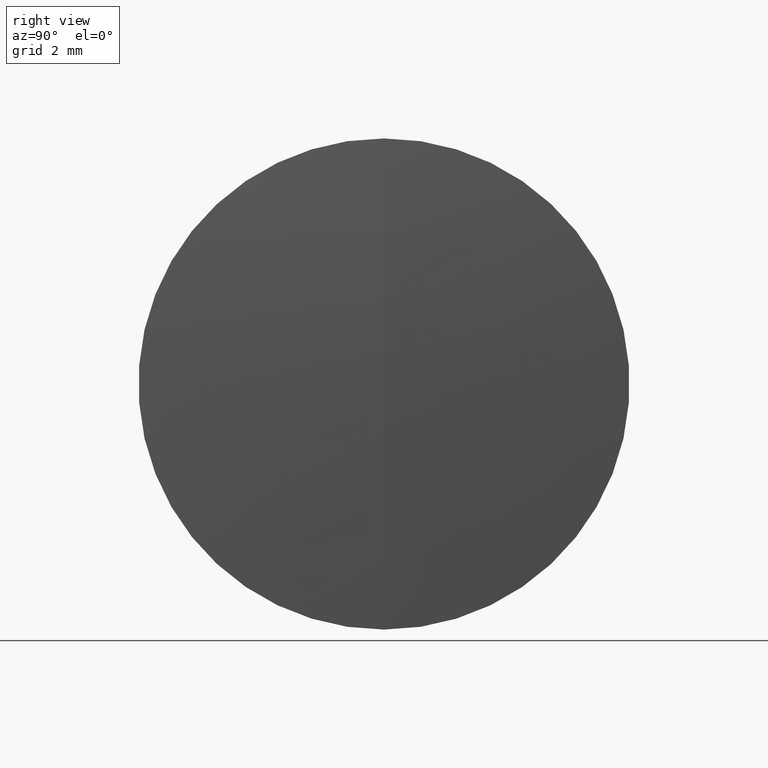
[diagram: clean part render]
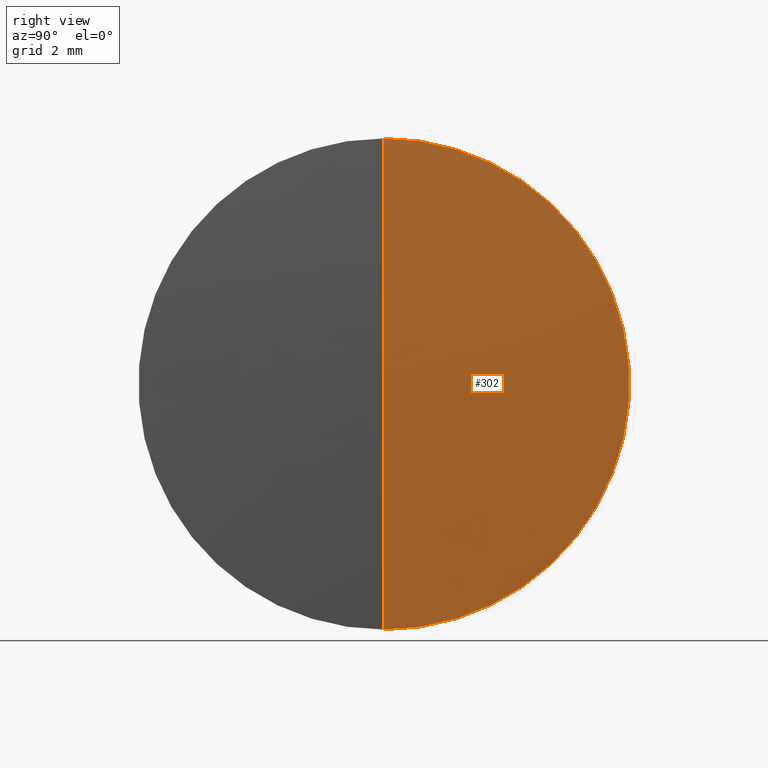
[diagram: same view with one face highlighted and labeled with its STEP entity id]
A machine part, right view. The second image highlights one B-rep face of the part: STEP entity #302.
In plain terms, the highlighted spherical surface has radius 77.4 mm.
Its self-contained STEP definition (entity closure, byte-faithful):
#28 = EDGE_CURVE ( 'NONE', #87, #33, #325, .T. ) ;
#31 = EDGE_CURVE ( 'NONE', #125, #33, #180, .T. ) ;
#33 = VERTEX_POINT ( 'NONE', #49 ) ;
#34 = DIRECTION ( 'NONE',  ( 0.0000000000000000000, 0.0000000000000000000, 1.000000000000000000 ) ) ;
#49 = CARTESIAN_POINT ( 'NONE',  ( 272.5480355923398900, 7.776507174585696100E-016, -6.350000000000002300 ) ) ;
#54 = CARTESIAN_POINT ( 'NONE',  ( 195.4089566504702000, 0.0000000000000000000, 0.0000000000000000000 ) ) ;
#67 = AXIS2_PLACEMENT_3D ( 'NONE', #158, #157, #154 ) ;
#82 = AXIS2_PLACEMENT_3D ( 'NONE', #215, #287, #262 ) ;
#87 = VERTEX_POINT ( 'NONE', #161 ) ;
#112 = CARTESIAN_POINT ( 'NONE',  ( 272.5480355923398900, 0.0000000000000000000, 0.0000000000000000000 ) ) ;
#125 = VERTEX_POINT ( 'NONE', #136 ) ;
#136 = CARTESIAN_POINT ( 'NONE',  ( 272.8089566504702400, 0.0000000000000000000, 4.739383112700257000E-015 ) ) ;
#145 = SPHERICAL_SURFACE ( 'NONE', #67, 77.39999999999999100 ) ;
#152 = FACE_OUTER_BOUND ( 'NONE', #227, .T. ) ;
#154 = DIRECTION ( 'NONE',  ( 0.0000000000000000000, 0.0000000000000000000, 1.000000000000000000 ) ) ;
#157 = DIRECTION ( 'NONE',  ( 0.0000000000000000000, 1.000000000000000000, 0.0000000000000000000 ) ) ;
#158 = CARTESIAN_POINT ( 'NONE',  ( 195.4089566504702000, 0.0000000000000000000, 0.0000000000000000000 ) ) ;
#161 = CARTESIAN_POINT ( 'NONE',  ( 272.5480355923398900, 0.0000000000000000000, 6.350000000000002300 ) ) ;
#180 = CIRCLE ( 'NONE', #82, 77.39999999999999100 ) ;
#215 = CARTESIAN_POINT ( 'NONE',  ( 195.4089566504702000, 0.0000000000000000000, 0.0000000000000000000 ) ) ;
#220 = DIRECTION ( 'NONE',  ( 0.0000000000000000000, -1.000000000000000000, 0.0000000000000000000 ) ) ;
#227 = EDGE_LOOP ( 'NONE', ( #309, #240, #282 ) ) ;
#240 = ORIENTED_EDGE ( 'NONE', *, *, #31, .T. ) ;
#243 = DIRECTION ( 'NONE',  ( -1.000000000000000000, -0.0000000000000000000, -0.0000000000000000000 ) ) ;
#245 = AXIS2_PLACEMENT_3D ( 'NONE', #54, #220, #339 ) ;
#251 = EDGE_CURVE ( 'NONE', #125, #87, #284, .T. ) ;
#262 = DIRECTION ( 'NONE',  ( 0.0000000000000000000, -1.224646799147353500E-016, 1.000000000000000000 ) ) ;
#273 = AXIS2_PLACEMENT_3D ( 'NONE', #112, #243, #34 ) ;
#282 = ORIENTED_EDGE ( 'NONE', *, *, #28, .F. ) ;
#284 = CIRCLE ( 'NONE', #245, 77.39999999999999100 ) ;
#287 = DIRECTION ( 'NONE',  ( -0.0000000000000000000, 1.000000000000000000, 1.224646799147353200E-016 ) ) ;
#302 = ADVANCED_FACE ( 'NONE', ( #152 ), #145, .T. ) ;
#309 = ORIENTED_EDGE ( 'NONE', *, *, #251, .F. ) ;
#325 = CIRCLE ( 'NONE', #273, 6.350000000000002300 ) ;
#339 = DIRECTION ( 'NONE',  ( 0.0000000000000000000, 0.0000000000000000000, -1.000000000000000000 ) ) ;